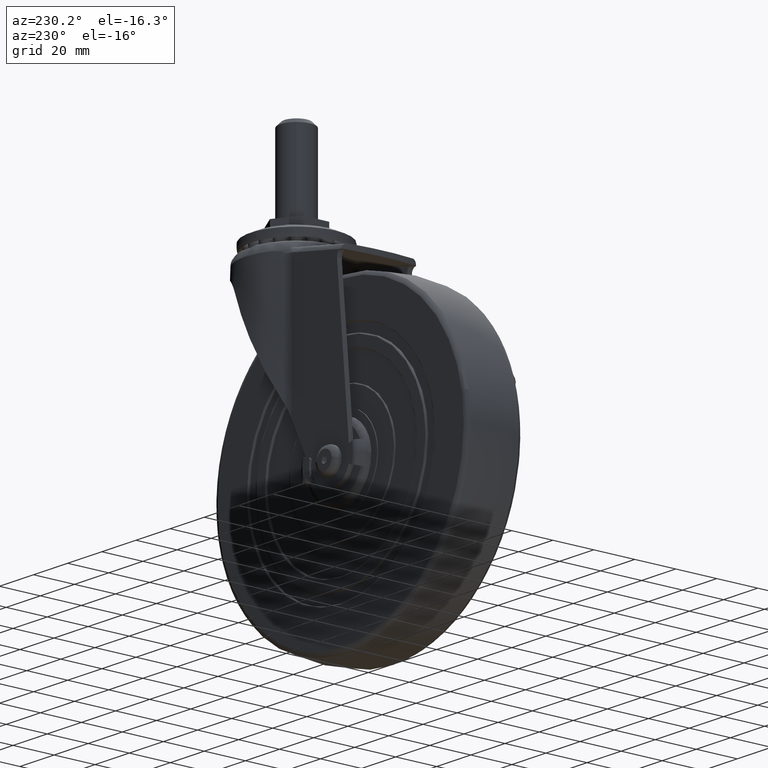
[diagram: clean part render]
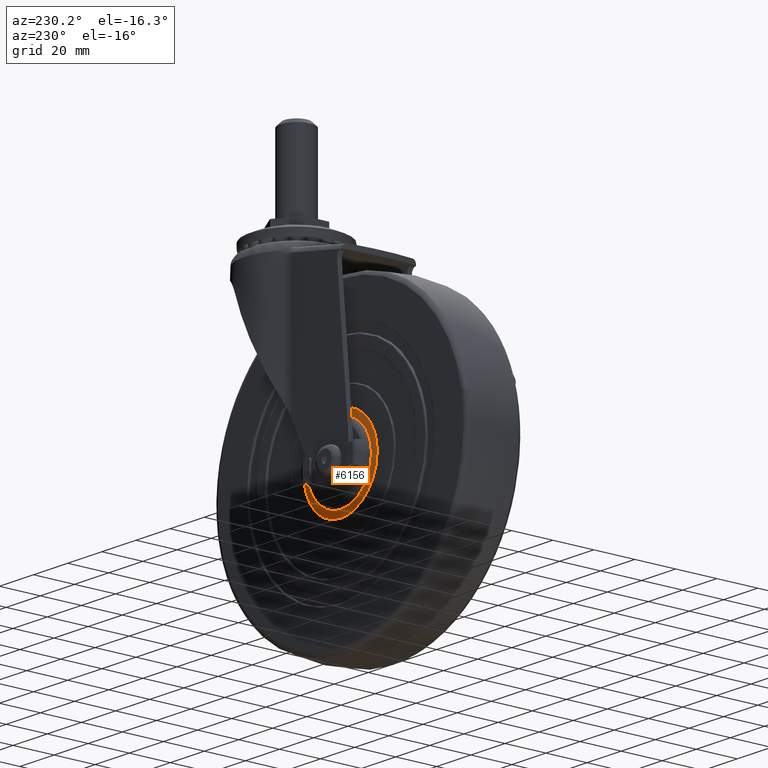
[diagram: same view with one face highlighted and labeled with its STEP entity id]
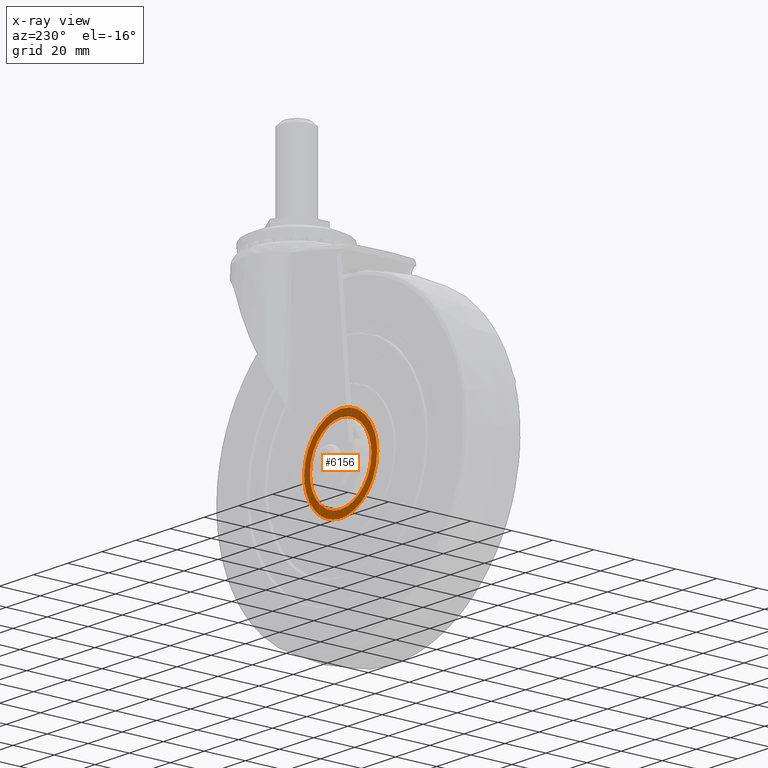
[diagram: x-ray of the same camera — body ghosted, the highlighted face saturated]
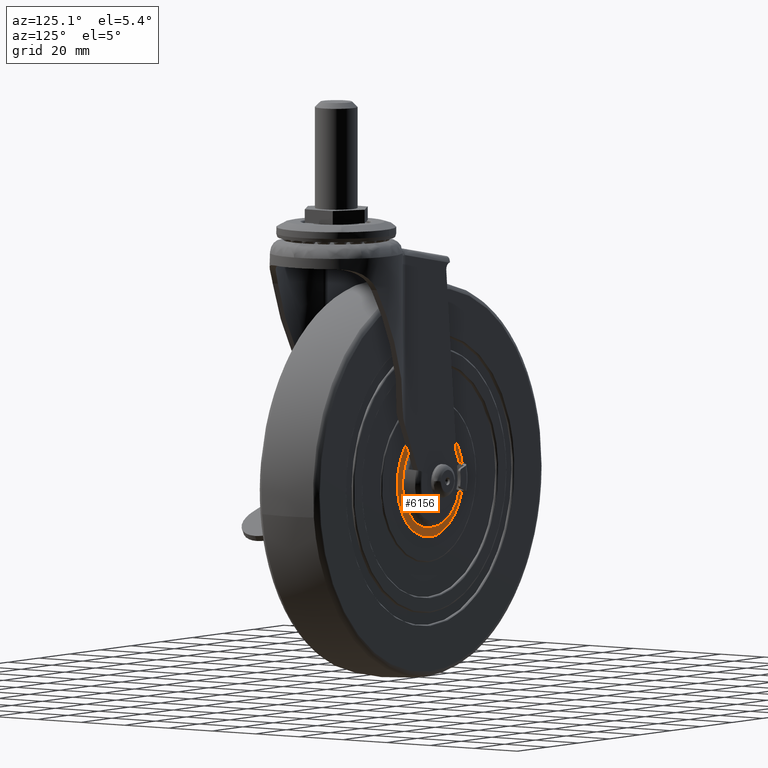
[diagram: same view with one face highlighted and labeled with its STEP entity id]
A machine part, auxiliary view. The second image highlights one B-rep face of the part: STEP entity #6156.
The next image is the same camera in x-ray: the body ghosted, the highlighted face saturated — about 0% of this face is hidden behind the body in this view.
A second angle (auxiliary view) of the same face is appended — the face is thin or edge-on in the first view.
In plain terms, the highlighted face is a freeform B-spline surface patch.
Its self-contained STEP definition (entity closure, byte-faithful):
#289=CARTESIAN_POINT('',(16.340091372650569,13.500000000129191,13.818880284248170));
#290=VERTEX_POINT('',#289);
#291=CARTESIAN_POINT('',(0.0,13.500000000000000,21.399999999999999));
#292=VERTEX_POINT('',#291);
#293=CARTESIAN_POINT('',(16.340091372650569,13.500000000129191,13.818880284248170));
#294=CARTESIAN_POINT('',(15.308571511740340,13.500000000121060,15.039114893509471));
#295=CARTESIAN_POINT('',(13.324546851679370,13.500000000105290,16.912016388512900));
#296=CARTESIAN_POINT('',(10.128727173003350,13.500000000080149,18.945836786693508));
#297=CARTESIAN_POINT('',(7.283897482738051,13.500000000057501,20.195916467265992));
#298=CARTESIAN_POINT('',(3.921739730518397,13.500000000031090,21.144197029980269));
#299=CARTESIAN_POINT('',(1.500969267515709,13.500000000011850,21.400247720720081));
#300=CARTESIAN_POINT('',(0.0,13.500000000000000,21.399999999999999));
#301=B_SPLINE_CURVE_WITH_KNOTS('',3,(#293,#294,#295,#296,#297,#298,#299,#300),.UNSPECIFIED.,.F.,.U.,(4,1,1,1,1,4),(0.000000048205763,4.793350909256484,8.134189494077679,11.329717469910840,14.089546233421769,18.592390696536789),.UNSPECIFIED.);
#302=EDGE_CURVE('',#290,#292,#301,.T.);
#304=CARTESIAN_POINT('',(-21.399999999999689,13.500000000000000,-0.000003637114214));
#305=VERTEX_POINT('',#304);
#306=CARTESIAN_POINT('',(0.0,13.500000000000000,21.399999999999999));
#307=CARTESIAN_POINT('',(-1.313084691537090,13.500000000000011,21.400128328460859));
#308=CARTESIAN_POINT('',(-4.026760427518786,13.500000000000011,21.149467063982659));
#309=CARTESIAN_POINT('',(-8.166424890454998,13.499999999999970,19.949305610621749));
#310=CARTESIAN_POINT('',(-12.050161223388841,13.500000000000091,17.873320866609660));
#311=CARTESIAN_POINT('',(-15.550061902521129,13.499999999999909,14.928408713560760));
#312=CARTESIAN_POINT('',(-18.150996603992819,13.499999999999950,11.595629997181909));
#313=CARTESIAN_POINT('',(-19.809926158486629,13.500000000000130,8.299274385905473));
#314=CARTESIAN_POINT('',(-21.048107114585680,13.499999999999799,4.551777879958550));
#315=CARTESIAN_POINT('',(-21.400523013465410,13.500000000000250,1.838376453612394));
#316=CARTESIAN_POINT('',(-21.399999999999689,13.500000000000000,-0.000003637114214));
#317=B_SPLINE_CURVE_WITH_KNOTS('',3,(#306,#307,#308,#309,#310,#311,#312,#313,#314,#315,#316),.UNSPECIFIED.,.F.,.U.,(4,1,1,1,1,1,1,1,4),(0.000000074186644,3.939262151720630,8.141191772313835,12.868342583542701,17.070227959107431,21.797355523847621,25.474063090417410,28.100284638446489,33.615254363478797),.UNSPECIFIED.);
#318=EDGE_CURVE('',#292,#305,#317,.T.);
#320=CARTESIAN_POINT('',(0.0,13.500000000000000,-21.399999999999999));
#321=VERTEX_POINT('',#320);
#322=CARTESIAN_POINT('',(-21.399999999999689,13.500000000000000,-0.000003637114214));
#323=CARTESIAN_POINT('',(-21.400118056453511,13.500000000000000,-1.313090475595949));
#324=CARTESIAN_POINT('',(-21.165633772988929,13.500000000000020,-3.851678698788625));
#325=CARTESIAN_POINT('',(-20.204847091910452,13.499999999999989,-7.323565738390660));
#326=CARTESIAN_POINT('',(-18.669635604823650,13.500000000000011,-10.675398136314850));
#327=CARTESIAN_POINT('',(-16.679177654814058,13.500000000000011,-13.576666029773930));
#328=CARTESIAN_POINT('',(-14.104444841153439,13.499999999999959,-16.215230513077181));
#329=CARTESIAN_POINT('',(-11.140503934479581,13.500000000000050,-18.413584242182552));
#330=CARTESIAN_POINT('',(-7.504260025528938,13.500000000000030,-20.188451697510491));
#331=CARTESIAN_POINT('',(-3.676625731811458,13.499999999999879,-21.197116656330952));
#332=CARTESIAN_POINT('',(-1.138001668522502,13.500000000000179,-21.400051515380380));
#333=CARTESIAN_POINT('',(0.0,13.500000000000000,-21.399999999999999));
#334=B_SPLINE_CURVE_WITH_KNOTS('',3,(#322,#323,#324,#325,#326,#327,#328,#329,#330,#331,#332,#333),.UNSPECIFIED.,.F.,.U.,(4,1,1,1,1,1,1,1,1,4),(0.000000075440049,3.939261672674203,7.615947342092689,10.767409749625971,14.969361049913410,18.120655834976851,21.797352865710401,25.999302051881291,30.201226966066692,33.615250263577700),.UNSPECIFIED.);
#335=EDGE_CURVE('',#305,#321,#334,.T.);
#337=CARTESIAN_POINT('',(14.730787397468710,13.499999999765279,-15.523010783568539));
#338=VERTEX_POINT('',#337);
#339=CARTESIAN_POINT('',(0.0,13.500000000000000,-21.399999999999999));
#340=CARTESIAN_POINT('',(1.777091777247241,13.499999999971701,-21.400473455321698));
#341=CARTESIAN_POINT('',(5.077067318260027,13.499999999919069,-20.986492896958939));
#342=CARTESIAN_POINT('',(9.145453812358142,13.499999999854319,-19.474293804620110));
#343=CARTESIAN_POINT('',(12.285729576785240,13.499999999804160,-17.617866426942591));
#344=CARTESIAN_POINT('',(13.932866646681759,13.499999999778209,-16.280300806498332));
#345=CARTESIAN_POINT('',(14.730787397468710,13.499999999765279,-15.523010783568539));
#346=B_SPLINE_CURVE_WITH_KNOTS('',3,(#339,#340,#341,#342,#343,#344,#345),.UNSPECIFIED.,.F.,.U.,(4,1,1,1,4),(0.000000026570877,5.331167817325296,9.900715695745042,12.947124920069660,16.247365065583871),.UNSPECIFIED.);
#347=EDGE_CURVE('',#321,#338,#346,.T.);
#437=CARTESIAN_POINT('',(21.399999999999689,13.500000000000000,0.000003637114548));
#438=VERTEX_POINT('',#437);
#439=CARTESIAN_POINT('',(21.399999999999689,13.500000000000000,0.000003637114548));
#440=CARTESIAN_POINT('',(21.400232268424901,13.500000000013900,1.486641801393538));
#441=CARTESIAN_POINT('',(21.129821617295072,13.500000000038030,4.068565626432539));
#442=CARTESIAN_POINT('',(20.180429209614470,13.500000000068310,7.306629713849922));
#443=CARTESIAN_POINT('',(18.752886701534340,13.500000000098460,10.531016710746011));
#444=CARTESIAN_POINT('',(17.401429002280999,13.500000000117470,12.564482509594351));
#445=CARTESIAN_POINT('',(16.340091372650569,13.500000000129191,13.818880284248170));
#446=B_SPLINE_CURVE_WITH_KNOTS('',3,(#439,#440,#441,#442,#443,#444,#445),.UNSPECIFIED.,.F.,.U.,(4,1,1,1,4),(0.000000029354704,4.459883695918254,7.746090571341950,10.093406096252160,15.022758758253261),.UNSPECIFIED.);
#447=EDGE_CURVE('',#438,#290,#446,.T.);
#472=CARTESIAN_POINT('',(14.730787397468710,13.499999999765279,-15.523010783568539));
#473=CARTESIAN_POINT('',(16.109200300168631,13.499999999785009,-14.215817882832100));
#474=CARTESIAN_POINT('',(18.112828704938789,13.499999999822720,-11.728372485540159));
#475=CARTESIAN_POINT('',(20.114473181849021,13.499999999884229,-7.652606094238850));
#476=CARTESIAN_POINT('',(21.166506623664809,13.499999999941251,-3.889630956213161));
#477=CARTESIAN_POINT('',(21.400112539297961,13.499999999980931,-1.266399087072481));
#478=CARTESIAN_POINT('',(21.399999999999689,13.500000000000000,0.000003637114548));
#479=B_SPLINE_CURVE_WITH_KNOTS('',3,(#472,#473,#474,#475,#476,#477,#478),.UNSPECIFIED.,.F.,.U.,(4,1,1,1,4),(0.000000016556896,5.698851726514382,9.498054086991317,13.568670655002590,17.367890874684210),.UNSPECIFIED.);
#480=EDGE_CURVE('',#338,#438,#479,.T.);
#2425=CARTESIAN_POINT('',(-4.433393002115588,13.500000000463819,-17.445504821846839));
#2426=VERTEX_POINT('',#2425);
#2427=CARTESIAN_POINT('',(0.0,13.500000000000000,-18.000017000000000));
#2428=VERTEX_POINT('',#2427);
#2429=CARTESIAN_POINT('',(-4.433393002115588,13.500000000463819,-17.445504821846839));
#2430=CARTESIAN_POINT('',(-2.986266467440564,13.500000000155980,-17.813530579402961));
#2431=CARTESIAN_POINT('',(-1.493185760971019,13.499999999999829,-18.000234099335941));
#2432=CARTESIAN_POINT('',(0.0,13.500000000000000,-18.000017000000000));
#2433=B_SPLINE_CURVE_WITH_KNOTS('',3,(#2429,#2430,#2431,#2432),.UNSPECIFIED.,.F.,.U.,(4,4),(4.073765E-009,4.479498119524111),.UNSPECIFIED.);
#2434=EDGE_CURVE('',#2426,#2428,#2433,.T.);
#2563=CARTESIAN_POINT('',(-17.998595794326441,13.500000000853291,0.226188931523018));
#2564=VERTEX_POINT('',#2563);
#2572=CARTESIAN_POINT('',(0.0,13.500000000000000,18.000017000000000));
#2573=VERTEX_POINT('',#2572);
#2574=CARTESIAN_POINT('',(0.0,13.500000000000000,18.000017000000000));
#2575=CARTESIAN_POINT('',(-1.387809949723760,13.500000000000020,18.000243788531598));
#2576=CARTESIAN_POINT('',(-4.236382858721556,13.500000000015850,17.669061200882730));
#2577=CARTESIAN_POINT('',(-7.895906889601910,13.500000000080661,16.320807343249179));
#2578=CARTESIAN_POINT('',(-10.504382687963490,13.500000000159140,14.684914620809741));
#2579=CARTESIAN_POINT('',(-12.415801118864840,13.500000000235501,13.094819835454270));
#2580=CARTESIAN_POINT('',(-14.172722535477821,13.500000000325141,11.228380612004861));
#2581=CARTESIAN_POINT('',(-15.929648551411111,13.500000000450740,8.609169977127062));
#2582=CARTESIAN_POINT('',(-17.509540272534590,13.500000000629230,4.894713639700960));
#2583=CARTESIAN_POINT('',(-17.977318885500321,13.500000000769109,1.979160424808002));
#2584=CARTESIAN_POINT('',(-17.998595794326441,13.500000000853291,0.226188931523018));
#2585=B_SPLINE_CURVE_WITH_KNOTS('',3,(#2574,#2575,#2576,#2577,#2578,#2579,#2580,#2581,#2582,#2583,#2584),.UNSPECIFIED.,.F.,.U.,(4,1,1,1,1,1,1,1,4),(0.000000140596388,4.163423303701727,8.545994069920727,11.613824705986399,13.366863772821031,15.996264195276000,19.283212391908091,22.789296003311041,28.048338887068660),.UNSPECIFIED.);
#2586=EDGE_CURVE('',#2573,#2564,#2585,.T.);
#2588=CARTESIAN_POINT('',(18.000016999999559,13.500000000000000,0.000003960522350));
#2589=VERTEX_POINT('',#2588);
#2590=CARTESIAN_POINT('',(18.000016999999559,13.500000000000000,0.000003960522350));
#2591=CARTESIAN_POINT('',(18.000372159996999,13.500000000000011,1.472661319229317));
#2592=CARTESIAN_POINT('',(17.654720841405169,13.500000000000011,4.270441483907993));
#2593=CARTESIAN_POINT('',(16.235215345420329,13.499999999999959,8.089729653007250));
#2594=CARTESIAN_POINT('',(14.435476316741971,13.500000000000000,10.893198631706820));
#2595=CARTESIAN_POINT('',(12.453765892188461,13.500000000000060,13.079551754199480));
#2596=CARTESIAN_POINT('',(10.579053229624339,13.500000000000011,14.637430704449409));
#2597=CARTESIAN_POINT('',(8.129689481749725,13.499999999999950,16.146744546684388));
#2598=CARTESIAN_POINT('',(4.712034510840333,13.500000000000060,17.562717150171711));
#2599=CARTESIAN_POINT('',(1.767227370317084,13.499999999999970,18.000744259198321));
#2600=CARTESIAN_POINT('',(0.0,13.500000000000000,18.000017000000000));
#2601=B_SPLINE_CURVE_WITH_KNOTS('',3,(#2590,#2591,#2592,#2593,#2594,#2595,#2596,#2597,#2598,#2599,#2600),.UNSPECIFIED.,.F.,.U.,(4,1,1,1,1,1,1,1,4),(0.000000116356006,4.417885571293379,8.394007432291627,12.149269882768820,14.358123632952660,17.229786518784959,19.438725215964858,22.973063890286831,28.274535763230130),.UNSPECIFIED.);
#2602=EDGE_CURVE('',#2589,#2573,#2601,.T.);
#2604=CARTESIAN_POINT('',(0.0,13.500000000000000,-18.000017000000000));
#2605=CARTESIAN_POINT('',(1.325365571069398,13.499999999999989,-18.000243823469258));
#2606=CARTESIAN_POINT('',(3.607840194428061,13.500000000000011,-17.746756966471999));
#2607=CARTESIAN_POINT('',(6.429899311013700,13.500000000000000,-16.871638549493571));
#2608=CARTESIAN_POINT('',(8.769890843490677,13.499999999999909,-15.782449348741601));
#2609=CARTESIAN_POINT('',(10.759073849421441,13.500000000000210,-14.505632660307320));
#2610=CARTESIAN_POINT('',(12.881745151106470,13.499999999999821,-12.674641050587740));
#2611=CARTESIAN_POINT('',(14.751962896581290,13.500000000000000,-10.479549914288500));
#2612=CARTESIAN_POINT('',(16.277592688931939,13.500000000000130,-7.861641007874332));
#2613=CARTESIAN_POINT('',(17.606349113452829,13.499999999999901,-4.417470750555641));
#2614=CARTESIAN_POINT('',(18.000876141811901,13.500000000000069,-1.767260142485081));
#2615=CARTESIAN_POINT('',(18.000016999999559,13.500000000000000,0.000003960522350));
#2616=B_SPLINE_CURVE_WITH_KNOTS('',3,(#2604,#2605,#2606,#2607,#2608,#2609,#2610,#2611,#2612,#2613,#2614,#2615),.UNSPECIFIED.,.F.,.U.,(4,1,1,1,1,1,1,1,1,4),(0.000000114991600,3.976078348865560,6.847740726679611,8.835817744764469,11.707489021492350,13.916418278656190,17.229789235573740,20.322318720279799,22.973067516197609,28.274540227689791),.UNSPECIFIED.);
#2617=EDGE_CURVE('',#2428,#2589,#2616,.T.);
#2639=CARTESIAN_POINT('',(-17.998595794326441,13.500000000853291,0.226188931523018));
#2640=CARTESIAN_POINT('',(-18.014495972734121,13.500000000732239,-1.024812449674284));
#2641=CARTESIAN_POINT('',(-17.824157465007051,13.500000000553101,-3.091594441236053));
#2642=CARTESIAN_POINT('',(-17.006951818870800,13.500000000342039,-6.118174727524892));
#2643=CARTESIAN_POINT('',(-15.956800093888150,13.500000000218110,-8.469120558574284));
#2644=CARTESIAN_POINT('',(-14.478151205474710,13.500000000137289,-10.795984075227031));
#2645=CARTESIAN_POINT('',(-12.440098571087780,13.500000000104500,-13.182950457637650));
#2646=CARTESIAN_POINT('',(-9.107103094214294,13.500000000176049,-15.773476143170610));
#2647=CARTESIAN_POINT('',(-6.131200330477602,13.500000000342441,-17.014791133465589));
#2648=CARTESIAN_POINT('',(-4.433393002115588,13.500000000463819,-17.445504821846839));
#2649=B_SPLINE_CURVE_WITH_KNOTS('',3,(#2639,#2640,#2641,#2642,#2643,#2644,#2645,#2646,#2647,#2648),.UNSPECIFIED.,.F.,.U.,(4,1,1,1,1,1,1,4),(0.000000142734415,3.753280667590438,6.192961924291893,9.383296534444455,11.447636052892531,14.450193417436390,18.766549757251859,24.021177427396161),.UNSPECIFIED.);
#2650=EDGE_CURVE('',#2564,#2426,#2649,.T.);
#6136=CARTESIAN_POINT('',(-23.537859515269169,13.500000000000000,23.537859515269520));
#6137=CARTESIAN_POINT('',(-23.537859515269169,13.500000000000000,-23.537861045916792));
#6138=CARTESIAN_POINT('',(23.537861045916440,13.500000000000000,23.537859515269520));
#6139=CARTESIAN_POINT('',(23.537861045916440,13.500000000000000,-23.537861045916792));
#6140=B_SPLINE_SURFACE_WITH_KNOTS('',1,1,((#6136,#6138),(#6137,#6139)),.UNSPECIFIED.,.F.,.F.,.U.,(2,2),(2,2),(0.0,47.075720561186301),(0.0,47.075720561185612),.UNSPECIFIED.);
#6141=ORIENTED_EDGE('',*,*,#335,.F.);
#6142=ORIENTED_EDGE('',*,*,#318,.F.);
#6143=ORIENTED_EDGE('',*,*,#302,.F.);
#6144=ORIENTED_EDGE('',*,*,#447,.F.);
#6145=ORIENTED_EDGE('',*,*,#480,.F.);
#6146=ORIENTED_EDGE('',*,*,#347,.F.);
#6147=EDGE_LOOP('',(#6141,#6142,#6143,#6144,#6145,#6146));
#6148=FACE_OUTER_BOUND('',#6147,.T.);
#6149=ORIENTED_EDGE('',*,*,#2586,.T.);
#6150=ORIENTED_EDGE('',*,*,#2650,.T.);
#6151=ORIENTED_EDGE('',*,*,#2434,.T.);
#6152=ORIENTED_EDGE('',*,*,#2617,.T.);
#6153=ORIENTED_EDGE('',*,*,#2602,.T.);
#6154=EDGE_LOOP('',(#6149,#6150,#6151,#6152,#6153));
#6155=FACE_BOUND('',#6154,.T.);
#6156=ADVANCED_FACE('',(#6148,#6155),#6140,.F.);